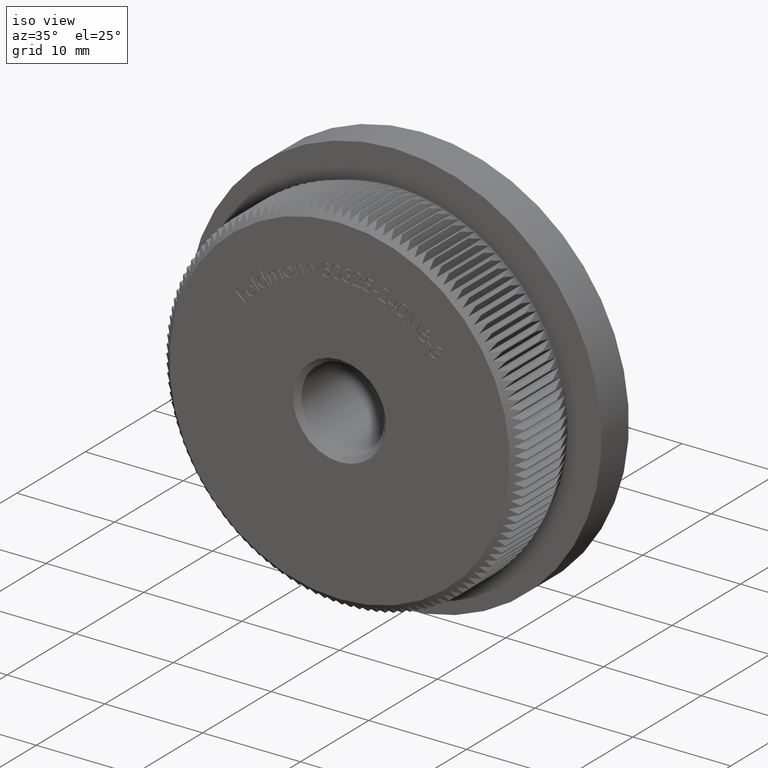
[diagram: clean part render]
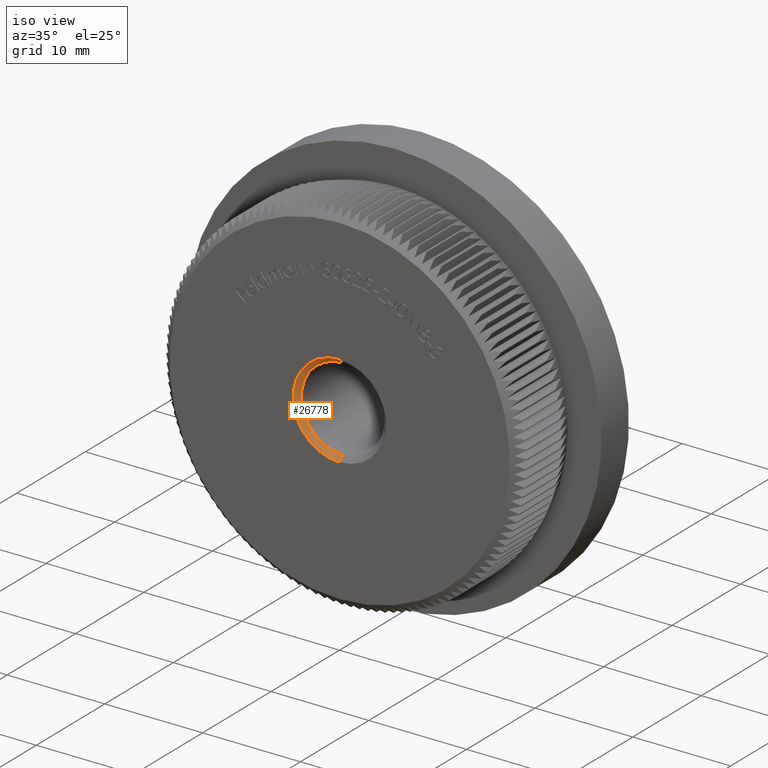
[diagram: same view with one face highlighted and labeled with its STEP entity id]
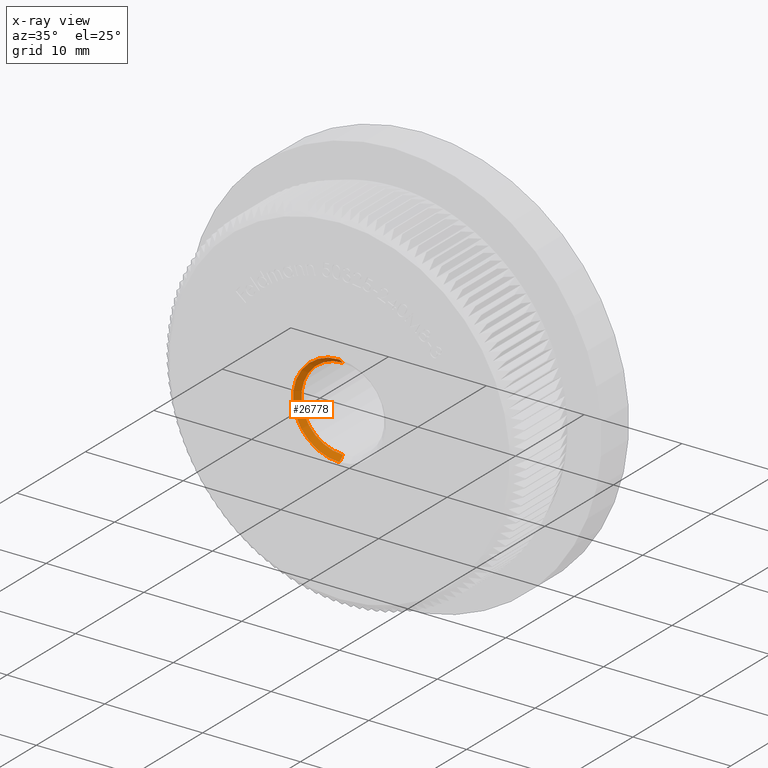
[diagram: x-ray of the same camera — body ghosted, the highlighted face saturated]
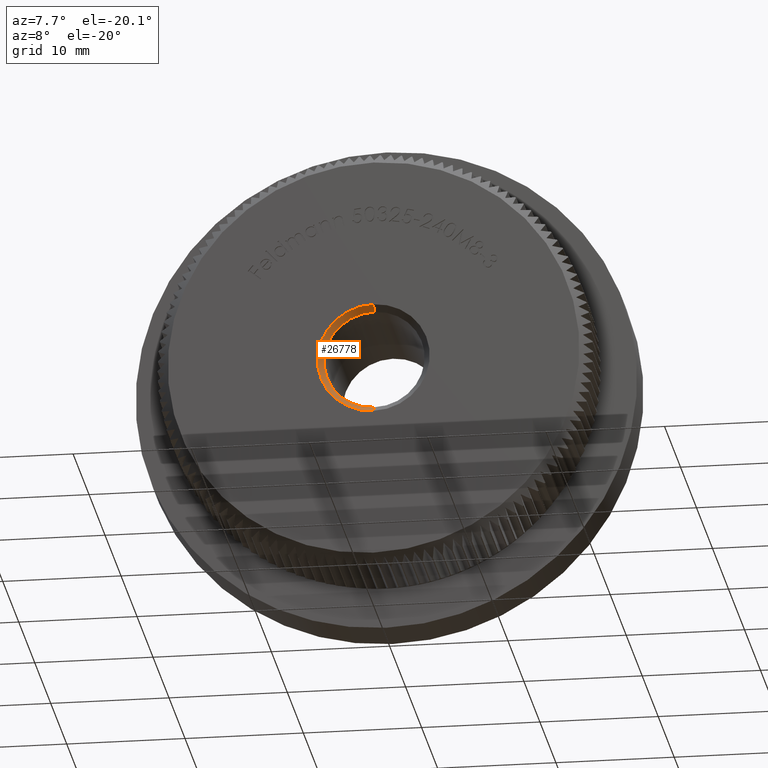
[diagram: same view with one face highlighted and labeled with its STEP entity id]
A machine part, iso view. The second image highlights one B-rep face of the part: STEP entity #26778.
The next image is the same camera in x-ray: the body ghosted, the highlighted face saturated — about 0% of this face is hidden behind the body in this view.
A second angle (auxiliary view) of the same face is appended — the face is thin or edge-on in the first view.
In plain terms, the highlighted conical surface has half-angle 45 deg.
Its self-contained STEP definition (entity closure, byte-faithful):
#123 = EDGE_LOOP ( 'NONE', ( #3028, #22811, #30587, #21000 ) ) ;
#446 = CARTESIAN_POINT ( 'NONE',  ( 5.817072295949942200E-016, 5.847688465928611800E-016, 4.750000000000011500 ) ) ;
#582 = VECTOR ( 'NONE', #25823, 1000.000000000000000 ) ;
#1899 = DIRECTION ( 'NONE',  ( 0.0000000000000000000, -1.000000000000000000, 0.0000000000000000000 ) ) ;
#3028 = ORIENTED_EDGE ( 'NONE', *, *, #16046, .F. ) ;
#3338 = VECTOR ( 'NONE', #14326, 1000.000000000000000 ) ;
#7695 = EDGE_CURVE ( 'NONE', #21154, #20655, #23343, .T. ) ;
#10483 = CIRCLE ( 'NONE', #13424, 4.249999999999997300 ) ;
#10736 = CARTESIAN_POINT ( 'NONE',  ( 0.0000000000000000000, 0.5000000000000078800, -4.249999999999997300 ) ) ;
#10941 = DIRECTION ( 'NONE',  ( 0.0000000000000000000, 0.0000000000000000000, -1.000000000000000000 ) ) ;
#11293 = DIRECTION ( 'NONE',  ( 0.0000000000000000000, -1.000000000000000000, 0.0000000000000000000 ) ) ;
#13228 = DIRECTION ( 'NONE',  ( 0.0000000000000000000, 1.000000000000000000, 0.0000000000000000000 ) ) ;
#13424 = AXIS2_PLACEMENT_3D ( 'NONE', #26983, #1899, #29874 ) ;
#14326 = DIRECTION ( 'NONE',  ( 8.659560562354985900E-017, -0.7071067811865432400, 0.7071067811865517900 ) ) ;
#15930 = EDGE_CURVE ( 'NONE', #23555, #20655, #21845, .T. ) ;
#16046 = EDGE_CURVE ( 'NONE', #23555, #21242, #10483, .T. ) ;
#16459 = DIRECTION ( 'NONE',  ( 0.0000000000000000000, 0.0000000000000000000, -1.000000000000000000 ) ) ;
#16955 = CONICAL_SURFACE ( 'NONE', #28805, 4.249999999999997300, 0.7853981633974543900 ) ;
#17543 = CARTESIAN_POINT ( 'NONE',  ( 5.204748896376248700E-016, 0.5000000000000078800, 4.249999999999997300 ) ) ;
#17750 = FACE_OUTER_BOUND ( 'NONE', #123, .T. ) ;
#18778 = CARTESIAN_POINT ( 'NONE',  ( 0.0000000000000000000, 0.5000000000000078800, 0.0000000000000000000 ) ) ;
#20655 = VERTEX_POINT ( 'NONE', #446 ) ;
#20684 = LINE ( 'NONE', #20972, #582 ) ;
#20972 = CARTESIAN_POINT ( 'NONE',  ( 0.0000000000000000000, 0.5000000000000078800, -4.249999999999997300 ) ) ;
#21000 = ORIENTED_EDGE ( 'NONE', *, *, #21847, .F. ) ;
#21154 = VERTEX_POINT ( 'NONE', #25671 ) ;
#21242 = VERTEX_POINT ( 'NONE', #10736 ) ;
#21845 = LINE ( 'NONE', #25576, #3338 ) ;
#21847 = EDGE_CURVE ( 'NONE', #21242, #21154, #20684, .T. ) ;
#22811 = ORIENTED_EDGE ( 'NONE', *, *, #15930, .T. ) ;
#23343 = CIRCLE ( 'NONE', #31668, 4.750000000000011500 ) ;
#23555 = VERTEX_POINT ( 'NONE', #17543 ) ;
#25576 = CARTESIAN_POINT ( 'NONE',  ( 5.204748896376248700E-016, 0.5000000000000078800, 4.249999999999997300 ) ) ;
#25671 = CARTESIAN_POINT ( 'NONE',  ( 0.0000000000000000000, 5.847688465928611800E-016, -4.750000000000011500 ) ) ;
#25823 = DIRECTION ( 'NONE',  ( 0.0000000000000000000, -0.7071067811865432400, -0.7071067811865517900 ) ) ;
#26778 = ADVANCED_FACE ( 'NONE', ( #17750 ), #16955, .F. ) ;
#26983 = CARTESIAN_POINT ( 'NONE',  ( 0.0000000000000000000, 0.5000000000000078800, 0.0000000000000000000 ) ) ;
#28805 = AXIS2_PLACEMENT_3D ( 'NONE', #18778, #11293, #16459 ) ;
#29874 = DIRECTION ( 'NONE',  ( 0.0000000000000000000, 0.0000000000000000000, -1.000000000000000000 ) ) ;
#30587 = ORIENTED_EDGE ( 'NONE', *, *, #7695, .F. ) ;
#31275 = CARTESIAN_POINT ( 'NONE',  ( 0.0000000000000000000, 5.847688465928611800E-016, 0.0000000000000000000 ) ) ;
#31668 = AXIS2_PLACEMENT_3D ( 'NONE', #31275, #13228, #10941 ) ;